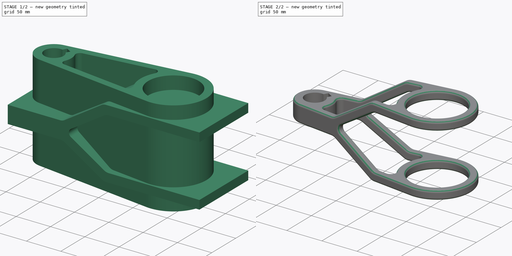
[diagram: build sequence overview — one tinted view per stage of 2, left to right]
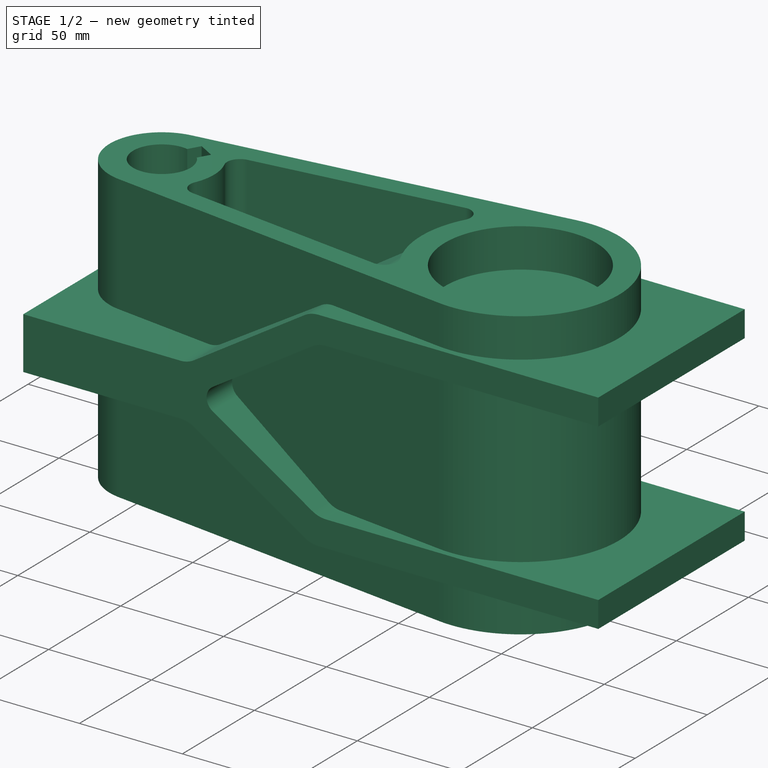
[diagram: stage 1 of 2 — iso view after this stage's code; geometry added in this stage tinted green]
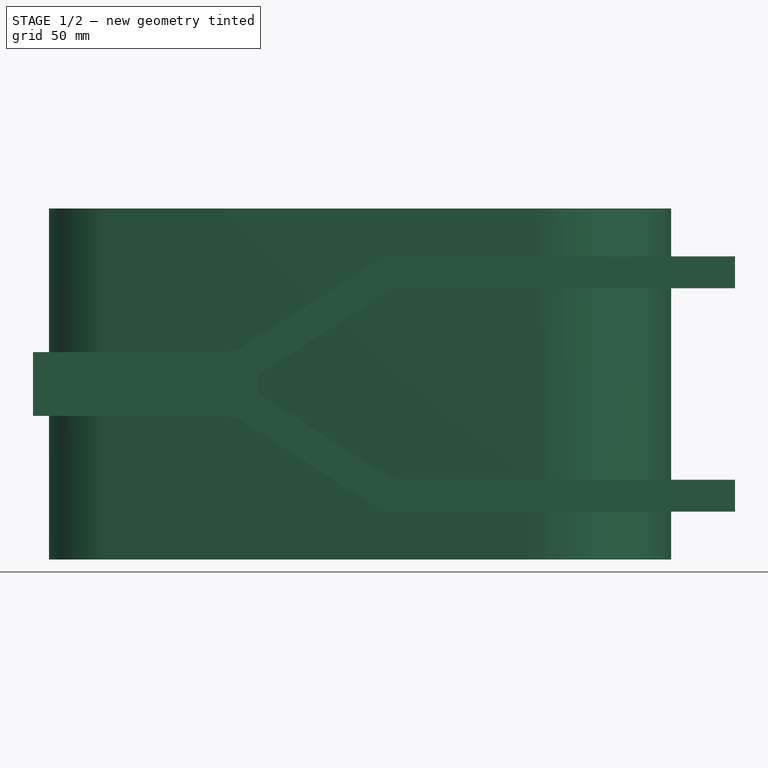
[diagram: stage 1 of 2 — front view after this stage's code; geometry added in this stage tinted green]
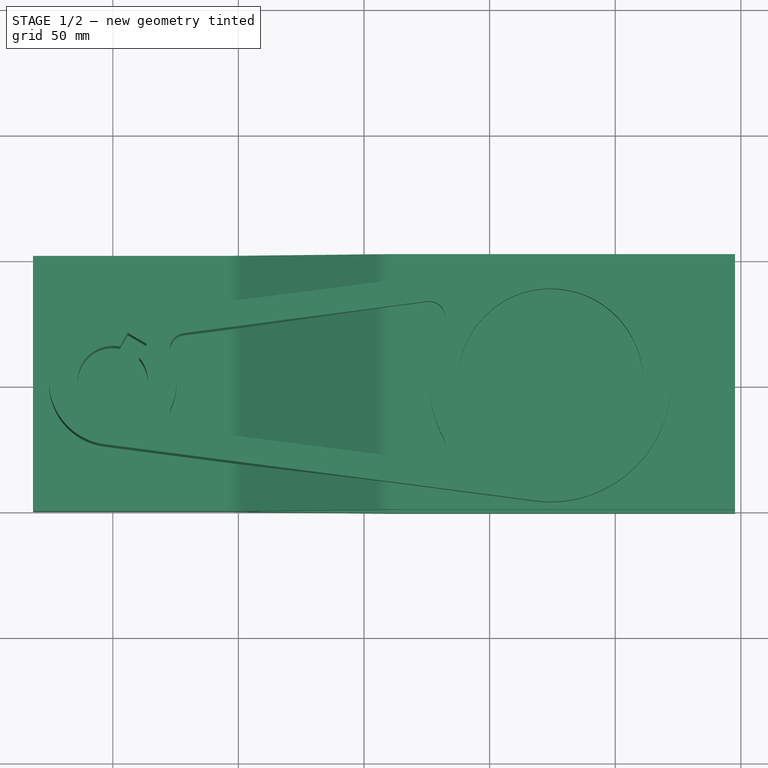
[diagram: stage 1 of 2 — top view after this stage's code; geometry added in this stage tinted green]
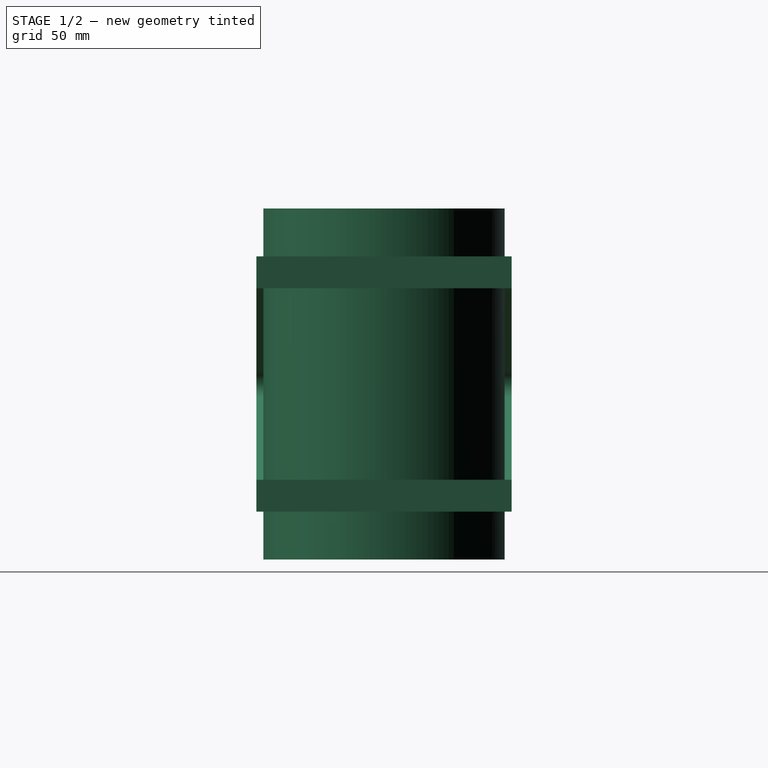
[diagram: stage 1 of 2 — right view after this stage's code; geometry added in this stage tinted green]
FCSTD DOCUMENT  (FreeCAD 0.19R23964 (Git))
Label: practice part
License: All rights reserved
LicenseURL: http://en.wikipedia.org/wiki/All_rights_reserved
objects: Sketcher::SketchObject×2, PartDesign::Pad×2, PartDesign::Body×2, PartDesign::Boolean×1, PartDesign::Fillet×1, App::Part×1
note: 11 computed .brp shape members not serialized (recipe doc carries the construction recipe); baked Part::Feature solids carry a one-line shape summary decoded from their .brp

FEATURE [Sketcher::SketchObject] Sketch
  FullyConstrained = true
  MapMode = 5
  Support = -> [XY_Plane001]
  sketch-geometry (20):
    g0: ArcOfCircle CenterX=0 CenterY=0 CenterZ=0 NormalX=0 NormalY=0 NormalZ=1 AngleXU=0 Radius=13.97 StartAngle=1.37101 EndAngle=7.00657
    g1: LineSegment StartX=2.7725 StartY=13.6921 StartZ=0 EndX=5.92952 EndY=19.1602 EndZ=0
    g2: LineSegment StartX=5.92952 StartY=19.1602 StartZ=0 EndX=13.6285 EndY=14.7152 EndZ=0
    g3: LineSegment StartX=13.6285 StartY=14.7152 StartZ=0 EndX=10.4715 EndY=9.24712 EndZ=0
    g4: ArcOfCircle CenterX=0 CenterY=0 CenterZ=0 NormalX=0 NormalY=0 NormalZ=1 AngleXU=0 Radius=25.4 StartAngle=1.7009 EndAngle=4.58228
    g5: LineSegment StartX=-3.29534 StartY=25.1853 StartZ=0 EndX=168.016 EndY=47.6003 EndZ=0
    g6: LineSegment StartX=-3.29534 StartY=-25.1853 StartZ=0 EndX=168.016 EndY=-47.6003 EndZ=0
    g7: ArcOfCircle CenterX=174.244 CenterY=0 CenterZ=0 NormalX=0 NormalY=0 NormalZ=1 AngleXU=0 Radius=48.006 StartAngle=4.58228 EndAngle=7.98409
    g8: GeomPoint X=-25.4 Y=0 Z=0
    g9: GeomPoint X=222.25 Y=0 Z=0
    g10: Circle CenterX=174.244 CenterY=0 CenterZ=0 NormalX=0 NormalY=0 NormalZ=1 AngleXU=0 Radius=36.83
    g11: ArcOfCircle CenterX=0 CenterY=0 CenterZ=0 NormalX=0 NormalY=0 NormalZ=1 AngleXU=0 Radius=25.4 StartAngle=5.86929 EndAngle=6.69709
    g12: ArcOfCircle CenterX=174.244 CenterY=0 CenterZ=0 NormalX=0 NormalY=0 NormalZ=1 AngleXU=0 Radius=48.26 StartAngle=2.65696 EndAngle=3.62623
    g13: ArcOfCircle CenterX=125.923 CenterY=25.442 CenterZ=0 NormalX=0 NormalY=0 NormalZ=1 AngleXU=0 Radius=6.35 StartAngle=5.79855 EndAngle=7.98409
    g14: ArcOfCircle CenterX=125.923 CenterY=-25.4419 CenterZ=0 NormalX=0 NormalY=0 NormalZ=1 AngleXU=0 Radius=6.34999 StartAngle=4.58228 EndAngle=6.76782
    g15: ArcOfCircle CenterX=29.069 CenterY=12.7693 CenterZ=0 NormalX=0 NormalY=0 NormalZ=1 AngleXU=0 Radius=6.35 StartAngle=1.7009 EndAngle=3.55549
    g16: ArcOfCircle CenterX=29.069 CenterY=-12.7693 CenterZ=0 NormalX=0 NormalY=0 NormalZ=1 AngleXU=0 Radius=6.34999 StartAngle=2.7277 EndAngle=4.58228
    g17: LineSegment StartX=28.2452 StartY=19.0656 StartZ=0 EndX=125.099 EndY=31.7383 EndZ=0
    g18: LineSegment StartX=28.2452 StartY=-19.0656 StartZ=0 EndX=125.099 EndY=-31.7383 EndZ=0
    g19: LineSegment StartX=28.2452 StartY=-19.0656 StartZ=0 EndX=26.927 EndY=-29.1397 EndZ=0
  constraints (62):
    c: Coincident(g0,g-1)
    c: Radius(g0) = 13.97
    c: Coincident(g1,g0)
    c: Coincident(g2,g1)
    c: Coincident(g3,g2)
    c: Coincident(g3,g0)
    c: Parallel(g1,g3)
    c: Perpendicular(g1,g2)
    c: Equal(g1,g3)
    c: Distance(g2) = 8.89
    c: Distance(g0,g2) = 19.558
    c: Angle(g3) = -2.0944
    c: Coincident(g4,g0)
    c: Coincident(g5,g4)
    c: Coincident(g6,g4)
    c: Tangent(g4,g6)
    c: Tangent(g4,g5)
    c: Coincident(g7,g5)
    c: Equal(g5,g6)
    c: Coincident(g6,g7)
    c: Radius(g7) = 48.006
    c: Tangent(g5,g7)
    c: Radius(g4) = 25.4
    c: PointOnObject(g8,g4)
    c: PointOnObject(g9,g7)
    c: DistanceX(g8,g9) = 247.65
    c: PointOnObject(g7,g-1)
    c: PointOnObject(g9,g-1)
    c: PointOnObject(g8,g-1)
    c: Coincident(g10,g7)
    c: Diameter(g10) = 73.66
    c: Coincident(g11,g0)
    c: Coincident(g12,g7)
    c: Coincident(g13,g12)
    c: Coincident(g14,g12)
    c: Coincident(g15,g11)
    c: Coincident(g16,g11)
    c: Tangent(g11,g15)
    c: Tangent(g11,g16)
    c: Tangent(g12,g13)
    c: Tangent(g12,g14)
    c: Equal(g15,g13)
    c: Equal(g14,g16)
    c: Coincident(g17,g15)
    c: Coincident(g17,g13)
    c: Coincident(g18,g16)
    c: Coincident(g18,g14)
    c: Tangent(g17,g15)
    c: Tangent(g17,g13)
    c: Tangent(g18,g14)
    c: Tangent(g18,g16)
    c: Parallel(g17,g5)
    c: Parallel(g18,g6)
    c: Radius(g13) = 6.35
    c: Radius(g12) = 48.26
    c: Radius(g11) = 25.4
    c: Equal(g17,g18)
    c: Coincident(g19,g16)
    c: PointOnObject(g19,g6)
    c: Perpendicular(g19,g6)
    c: Distance(g19) = 10.16
    c: Vertical(g11,g11)
FEATURE [Sketcher::SketchObject] Sketch001
  FullyConstrained = true
  MapMode = 5
  Placement = pos=(0,0,0) rot=(1,0,0;1.5708rad)
  Support = -> [XZ_Plane002]
  sketch-geometry (22):
    g0: LineSegment StartX=44.45 StartY=12.7 StartZ=0 EndX=-31.75 EndY=12.7 EndZ=0
    g1: LineSegment StartX=-31.75 StartY=12.7 StartZ=0 EndX=-31.75 EndY=-12.7 EndZ=0
    g2: LineSegment StartX=-31.75 StartY=-12.7 StartZ=0 EndX=44.45 EndY=-12.7 EndZ=0
    g3: ArcOfCircle CenterX=44.45 CenterY=-25.4 CenterZ=0 NormalX=0 NormalY=0 NormalZ=1 AngleXU=0 Radius=12.7 StartAngle=1.00356 EndAngle=1.5708
    g4: LineSegment StartX=51.2737 StartY=-14.6889 StartZ=0 EndX=104.835 EndY=-48.8111 EndZ=0
    g5: ArcOfCircle CenterX=111.658 CenterY=-38.1 CenterZ=0 NormalX=0 NormalY=0 NormalZ=1 AngleXU=0 Radius=12.7 StartAngle=4.14516 EndAngle=4.71239
    g6: LineSegment StartX=111.658 StartY=-50.8 StartZ=0 EndX=247.65 EndY=-50.8 EndZ=0
    g7: LineSegment StartX=247.65 StartY=-50.8 StartZ=0 EndX=247.65 EndY=-38.1 EndZ=0
    g8: LineSegment StartX=247.65 StartY=-38.1 StartZ=0 EndX=115.36 EndY=-38.1 EndZ=0
    g9: LineSegment StartX=108.536 StartY=-36.1111 StartZ=0 EndX=60.2599 EndY=-5.35554 EndZ=0
    g10: ArcOfCircle CenterX=115.36 CenterY=-25.4 CenterZ=0 NormalX=0 NormalY=0 NormalZ=1 AngleXU=0 Radius=12.7 StartAngle=4.14516 EndAngle=4.71239
    g11: LineSegment StartX=108.536 StartY=-36.1111 StartZ=0 EndX=101.713 EndY=-46.8221 EndZ=0
    g12: ArcOfCircle CenterX=63.6718 CenterY=8e-16 CenterZ=0 NormalX=0 NormalY=0 NormalZ=1 AngleXU=0 Radius=6.35 StartAngle=3.14159 EndAngle=4.14516
    g13: ArcOfCircle CenterX=63.6718 CenterY=8e-16 CenterZ=0 NormalX=0 NormalY=0 NormalZ=1 AngleXU=0 Radius=6.35 StartAngle=2.13803 EndAngle=3.14159
    g14: LineSegment StartX=60.2599 StartY=5.35554 StartZ=0 EndX=108.536 EndY=36.1111 EndZ=0
    g15: ArcOfCircle CenterX=115.36 CenterY=25.4 CenterZ=0 NormalX=0 NormalY=0 NormalZ=1 AngleXU=0 Radius=12.7 StartAngle=1.5708 EndAngle=2.13803
    g16: LineSegment StartX=115.36 StartY=38.1 StartZ=0 EndX=247.65 EndY=38.1 EndZ=0
    g17: LineSegment StartX=247.65 StartY=38.1 StartZ=0 EndX=247.65 EndY=50.8 EndZ=0
    g18: LineSegment StartX=247.65 StartY=50.8 StartZ=0 EndX=111.658 EndY=50.8 EndZ=0
    g19: ArcOfCircle CenterX=111.658 CenterY=38.1 CenterZ=0 NormalX=0 NormalY=0 NormalZ=1 AngleXU=0 Radius=12.7 StartAngle=1.5708 EndAngle=2.13803
    g20: LineSegment StartX=104.835 StartY=48.8111 StartZ=0 EndX=51.2737 EndY=14.6889 EndZ=0
    g21: ArcOfCircle CenterX=44.45 CenterY=25.4 CenterZ=0 NormalX=0 NormalY=0 NormalZ=1 AngleXU=0 Radius=12.7 StartAngle=4.71239 EndAngle=5.27962
  constraints (68):
    c: Horizontal(g0)
    c: Coincident(g0,g1)
    c: Coincident(g1,g2)
    c: Horizontal(g2)
    c: DistanceX(g0,g-1) = 31.75
    c: Equal(g0,g2)
    c: DistanceY(g1,g0) = 25.4
    c: Symmetric(g0,g1,g-1)
    c: DistanceX(g2,g2) = 76.2
    c: Coincident(g3,g2)
    c: Radius(g3) = 12.7
    c: Coincident(g4,g3)
    c: Tangent(g3,g4)
    c: Tangent(g2,g3)
    c: Angle(g-1,g4) = 2.57436
    c: Coincident(g5,g4)
    c: Tangent(g4,g5)
    c: Equal(g5,g3)
    c: Vertical(g5,g5)
    c: Coincident(g6,g5)
    c: Horizontal(g6)
    c: DistanceX(g1,g6) = 279.4
    c: Coincident(g6,g7)
    c: Vertical(g7)
    c: Coincident(g7,g8)
    c: Horizontal(g8)
    c: Parallel(g9,g4)
    c: DistanceY(g6,g7) = 12.7
    c: Tangent(g9,g10) = 1.5708
    c: Tangent(g8,g10) = 1.5708
    c: Equal(g10,g5)
    c: Coincident(g11,g9)
    c: PointOnObject(g11,g4)
    c: Perpendicular(g9,g11)
    c: Distance(g11) = 12.7
    c: Coincident(g12,g9)
    c: Tangent(g12,g9)
    c: Horizontal(g12,g12)
    c: Radius(g12) = 6.35
    c: PointOnObject(g12,g-1)
    c: Coincident(g13,g12)
    c: Vertical(g13,g9)
    c: Coincident(g13,g12)
    c: Coincident(g14,g13)
    c: Tangent(g14,g13)
    c: Equal(g14,g9)
    c: Coincident(g15,g14)
    c: Tangent(g14,g15)
    c: Equal(g15,g10)
    c: Vertical(g15,g8)
    c: Coincident(g16,g15)
    c: Horizontal(g16)
    c: Coincident(g17,g16)
    c: Vertical(g17)
    c: Coincident(g18,g17)
    c: Horizontal(g18)
    c: Equal(g16,g8)
    c: Equal(g17,g7)
    c: Equal(g18,g6)
    c: Tangent(g19,g18) = -1.5708
    c: Equal(g20,g4)
    c: Vertical(g19,g4)
    c: Tangent(g20,g19) = -1.5708
    c: Equal(g5,g19)
    c: Coincident(g21,g0)
    c: Coincident(g21,g20)
    c: Equal(g21,g3)
    c: DistanceY(g6,g-1) = 50.8
FEATURE [PartDesign::Pad] Pad
  Direction = (1,1,1)
  Length = 139.7
  Length2 = 100.076
  Midplane = true
  Profile = -> Sketch
  Type = 0
FEATURE [PartDesign::Body] Body
  Group = -> [Sketch,Pad]
  Origin = -> Origin001
  Tip = -> Pad
FEATURE [PartDesign::Pad] Pad001
  Direction = (1,1,1)
  Length = 101.6
  Length2 = 100.076
  Midplane = true
  Placement = pos=(0,0,0) rot=(1,0,0;1.5708rad)
  Profile = -> Sketch001
  Type = 0
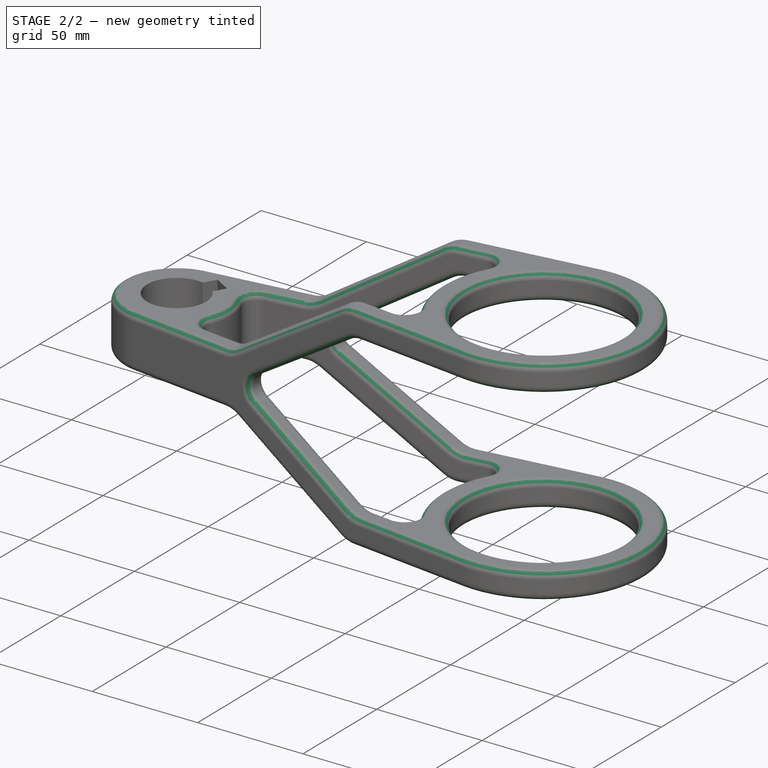
[diagram: stage 2 of 2 — iso view after this stage's code; geometry added in this stage tinted green]
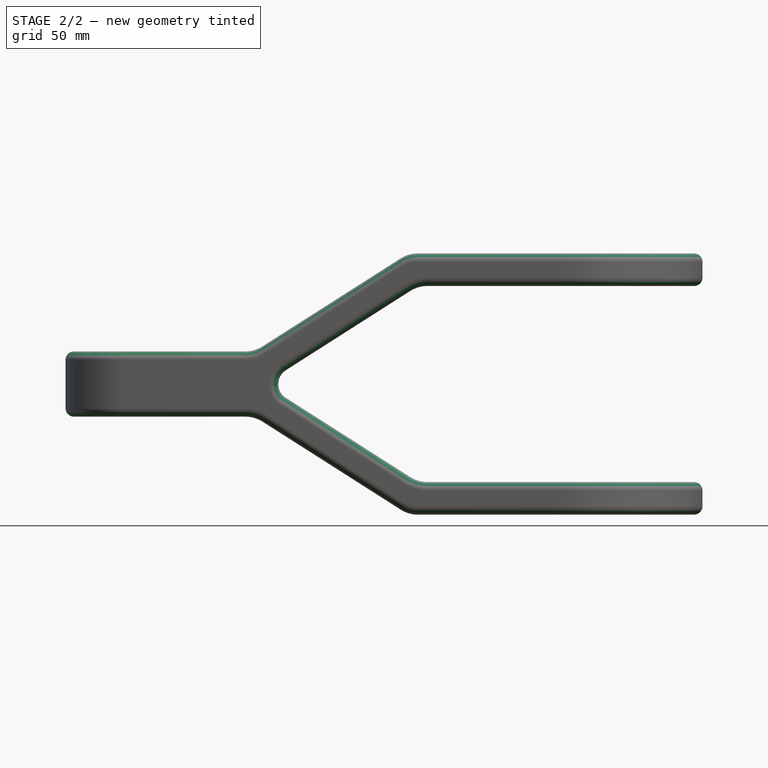
[diagram: stage 2 of 2 — front view after this stage's code; geometry added in this stage tinted green]
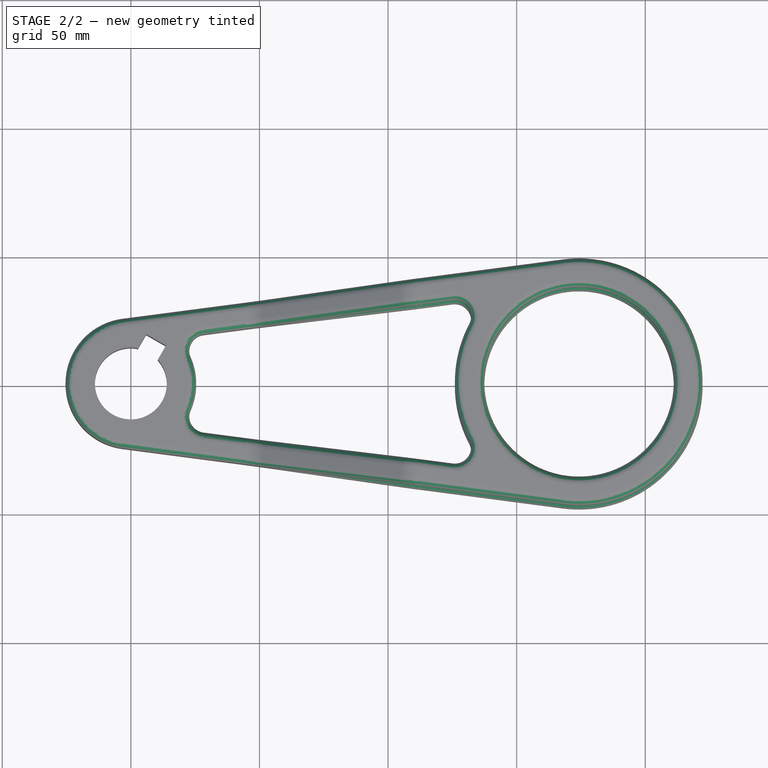
[diagram: stage 2 of 2 — top view after this stage's code; geometry added in this stage tinted green]
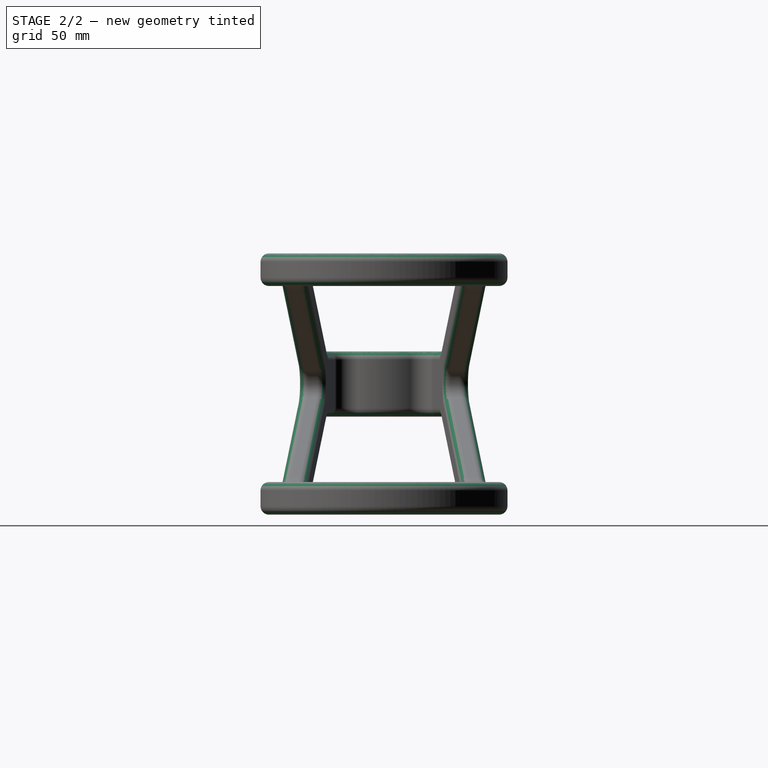
[diagram: stage 2 of 2 — right view after this stage's code; geometry added in this stage tinted green]
FEATURE [PartDesign::Boolean] Boolean
  BaseFeature = -> Pad001
  Group = -> [Body]
  Type = 2
FEATURE [PartDesign::Fillet] Fillet
  Base = -> Boolean [Face4,Face10,Face52,Face50]
  BaseFeature = -> Boolean
  Radius = 3.302
  SupportTransform = false
FEATURE [PartDesign::Body] Body001
  Group = -> [Sketch001,Pad001,Boolean,Fillet]
  Origin = -> Origin002
  Tip = -> Fillet
FEATURE [App::Part] Part
  Group = -> [Body001]
  Origin = -> Origin
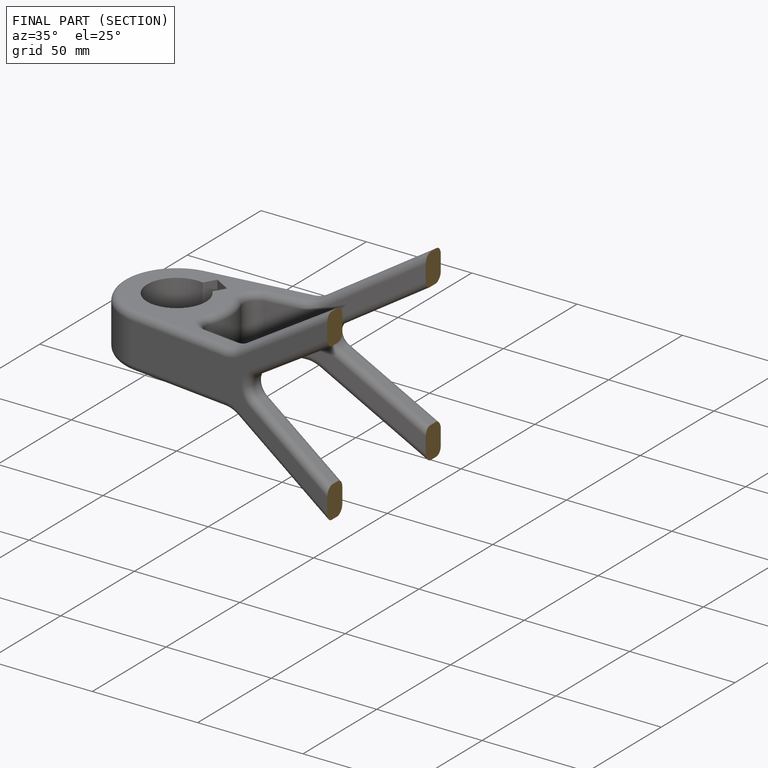
[diagram: finished part — half-section view (interior)]
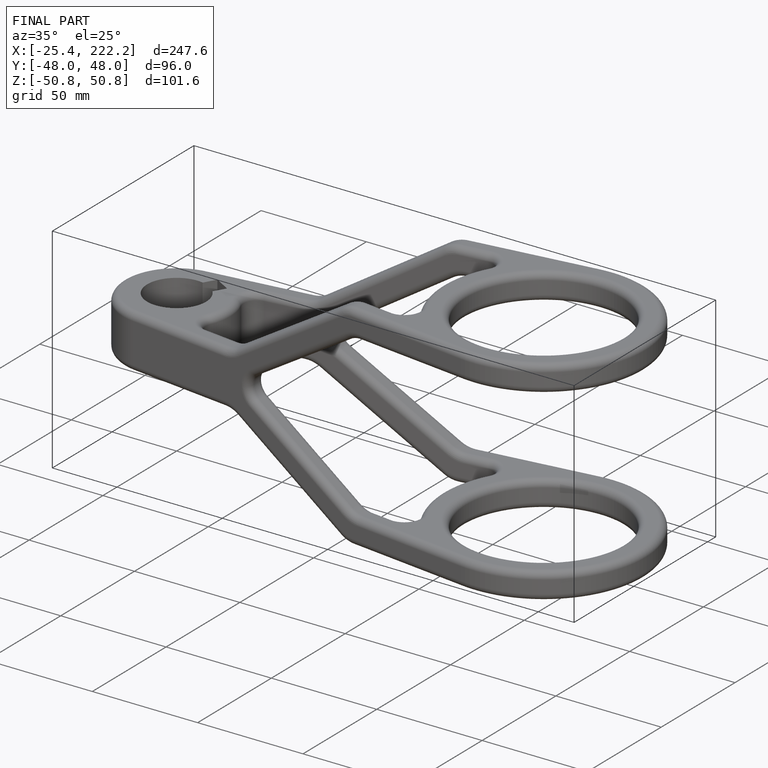
[diagram: finished part — iso view with bounding-box wireframe]
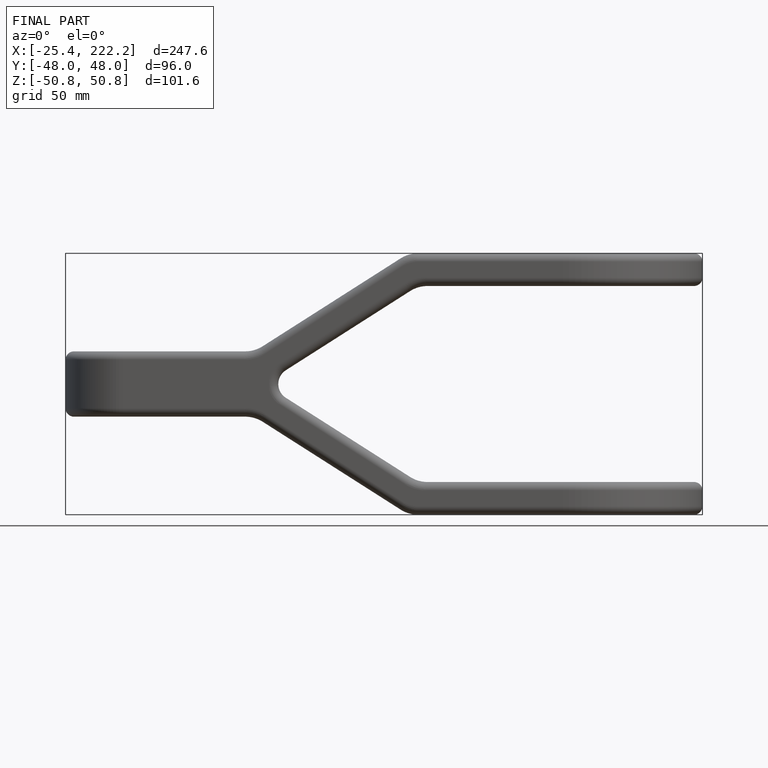
[diagram: finished part — front view with bounding-box wireframe]
